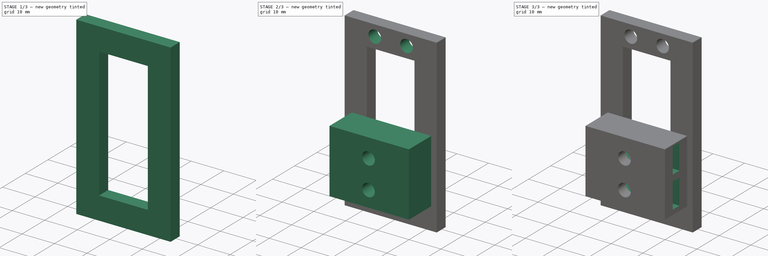
[diagram: build sequence overview — one tinted view per stage of 3, left to right]
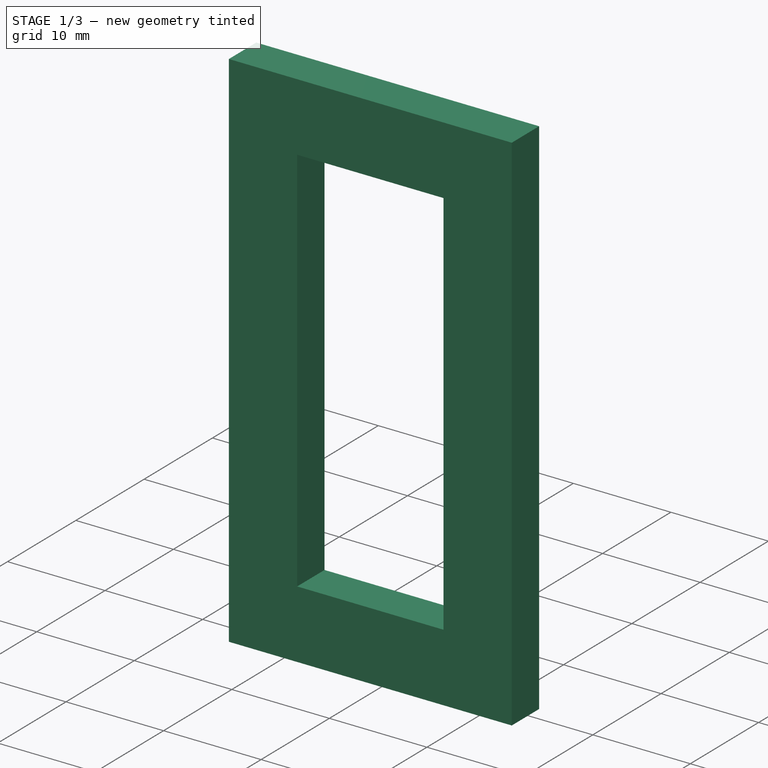
[diagram: stage 1 of 3 — iso view after this stage's code; geometry added in this stage tinted green]
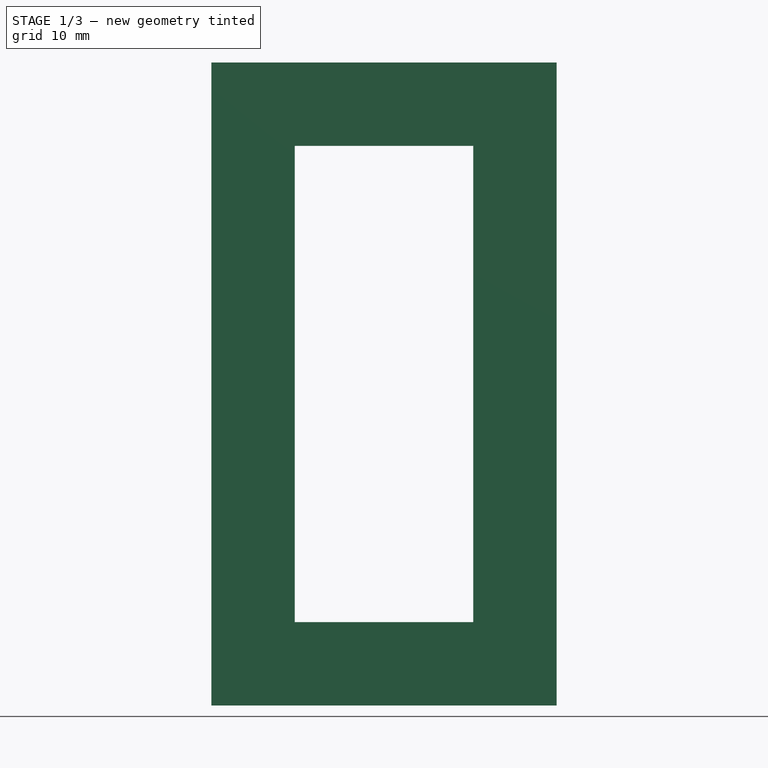
[diagram: stage 1 of 3 — front view after this stage's code; geometry added in this stage tinted green]
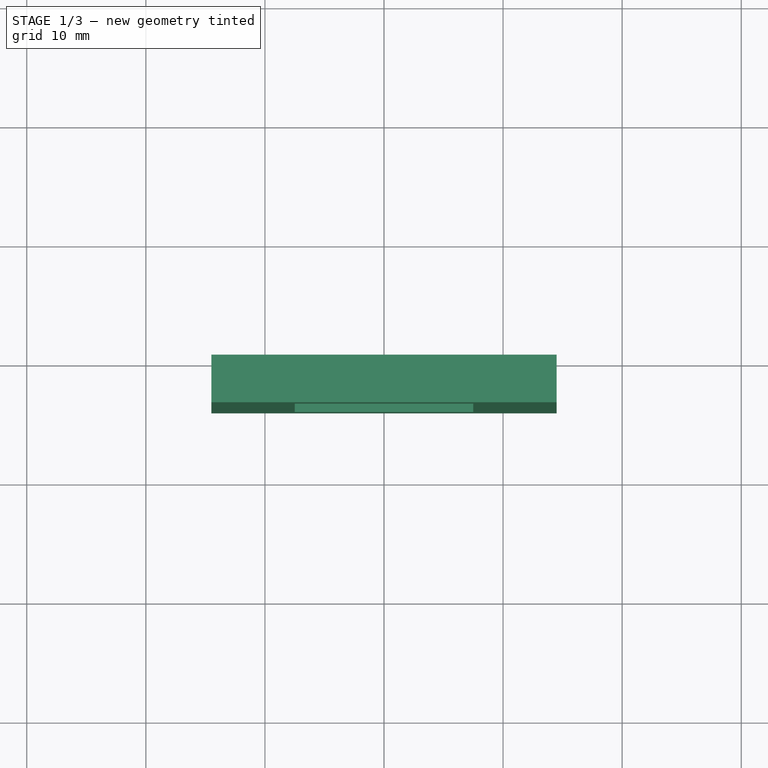
[diagram: stage 1 of 3 — top view after this stage's code; geometry added in this stage tinted green]
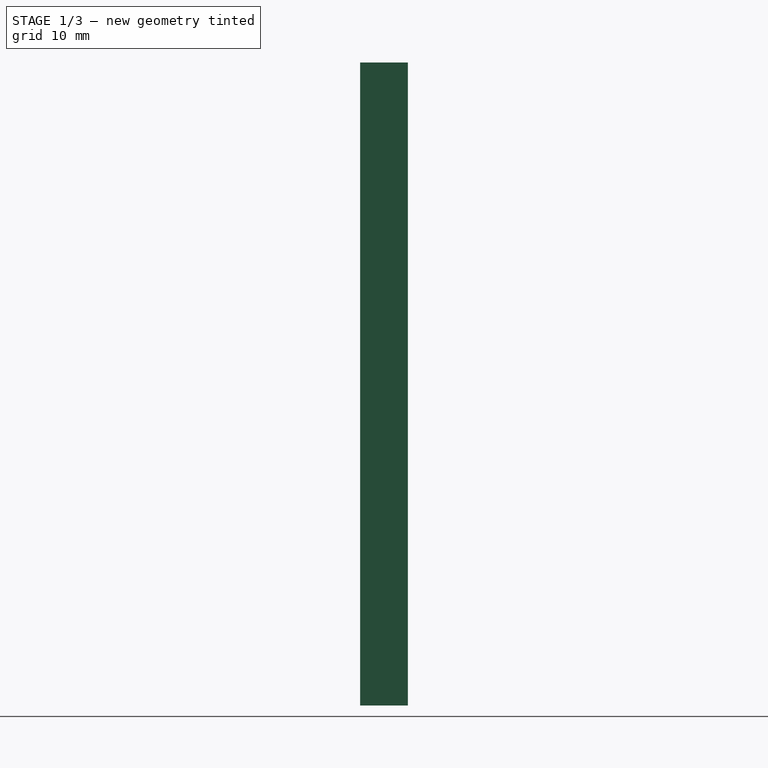
[diagram: stage 1 of 3 — right view after this stage's code; geometry added in this stage tinted green]
FCSTD DOCUMENT  (FreeCAD 0.19R24267 +99 (Git))
Label: Motorhalterung
License: All rights reserved
LicenseURL: http://en.wikipedia.org/wiki/All_rights_reserved
objects: Sketcher::SketchObject×6, PartDesign::Pocket×4, PartDesign::Pad×2, PartDesign::Chamfer×1, PartDesign::Body×1
note: 21 computed .brp shape members not serialized (recipe doc carries the construction recipe); baked Part::Feature solids carry a one-line shape summary decoded from their .brp

FEATURE [Sketcher::SketchObject] Sketch
  FullyConstrained = true
  MapMode = 5
  Placement = pos=(0,0,0) rot=(1,0,0;1.5708rad)
  Support = -> [XZ_Plane]
  sketch-geometry (4):
    g0: LineSegment StartX=-14.5 StartY=27 StartZ=0 EndX=14.5 EndY=27 EndZ=0
    g1: LineSegment StartX=14.5 StartY=27 StartZ=0 EndX=14.5 EndY=-27 EndZ=0
    g2: LineSegment StartX=14.5 StartY=-27 StartZ=0 EndX=-14.5 EndY=-27 EndZ=0
    g3: LineSegment StartX=-14.5 StartY=-27 StartZ=0 EndX=-14.5 EndY=27 EndZ=0
  constraints (11):
    c: Coincident(g0,g1)
    c: Coincident(g1,g2)
    c: Coincident(g2,g3)
    c: Coincident(g3,g0)
    c: Horizontal(g0)
    c: Horizontal(g2)
    c: Vertical(g1)
    c: Vertical(g3)
    c: Symmetric(g2,g0,g-1)
    c: DistanceY(g1,g1) = 54
    c: DistanceX(g2,g2) = 29
FEATURE [PartDesign::Pad] Pad
  Direction = (1,1,1)
  Length = 4
  Length2 = 100
  Placement = pos=(0,0,0) rot=(1,0,0;1.5708rad)
  Profile = -> Sketch
  Type = 0
FEATURE [Sketcher::SketchObject] Sketch001
  FullyConstrained = true
  MapMode = 5
  Placement = pos=(0,-4,1.8e-15) rot=(1,0,0;1.5708rad)
  Support = -> [Pad]
  sketch-geometry (4):
    g0: LineSegment StartX=-7.5 StartY=20 StartZ=0 EndX=7.5 EndY=20 EndZ=0
    g1: LineSegment StartX=7.5 StartY=20 StartZ=0 EndX=7.5 EndY=-20 EndZ=0
    g2: LineSegment StartX=7.5 StartY=-20 StartZ=0 EndX=-7.5 EndY=-20 EndZ=0
    g3: LineSegment StartX=-7.5 StartY=-20 StartZ=0 EndX=-7.5 EndY=20 EndZ=0
  constraints (11):
    c: Coincident(g0,g1)
    c: Coincident(g1,g2)
    c: Coincident(g2,g3)
    c: Coincident(g3,g0)
    c: Horizontal(g0)
    c: Horizontal(g2)
    c: Vertical(g1)
    c: Vertical(g3)
    c: Symmetric(g0,g1,g-1)
    c: DistanceY(g1,g1) = 40
    c: DistanceX(g0,g0) = 15
FEATURE [PartDesign::Pocket] Pocket
  BaseFeature = -> Pad
  Length = 5
  Length2 = 100
  Placement = pos=(0,0,0) rot=(1,0,0;1.5708rad)
  Profile = -> Sketch001
  Type = 0
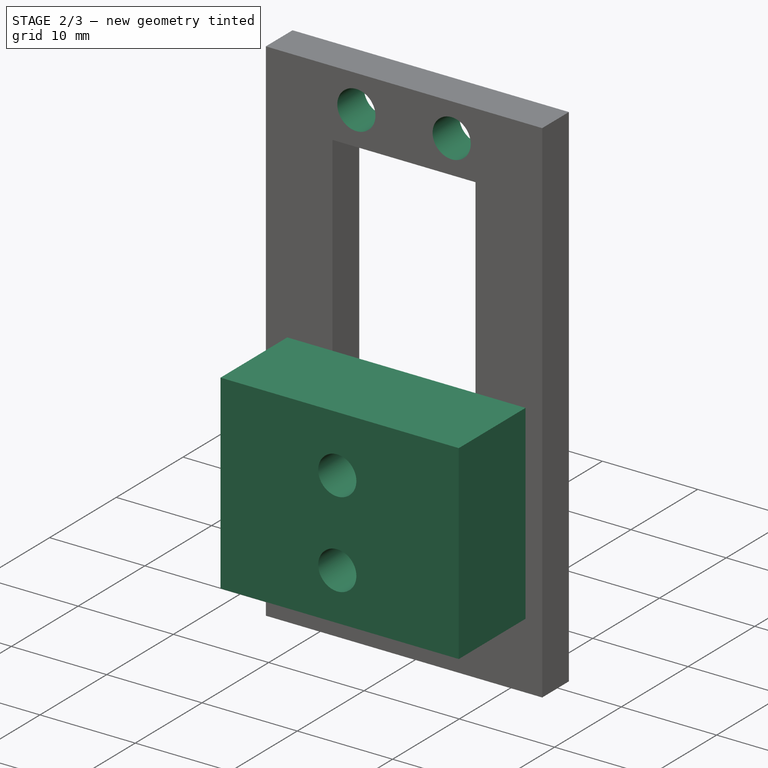
[diagram: stage 2 of 3 — iso view after this stage's code; geometry added in this stage tinted green]
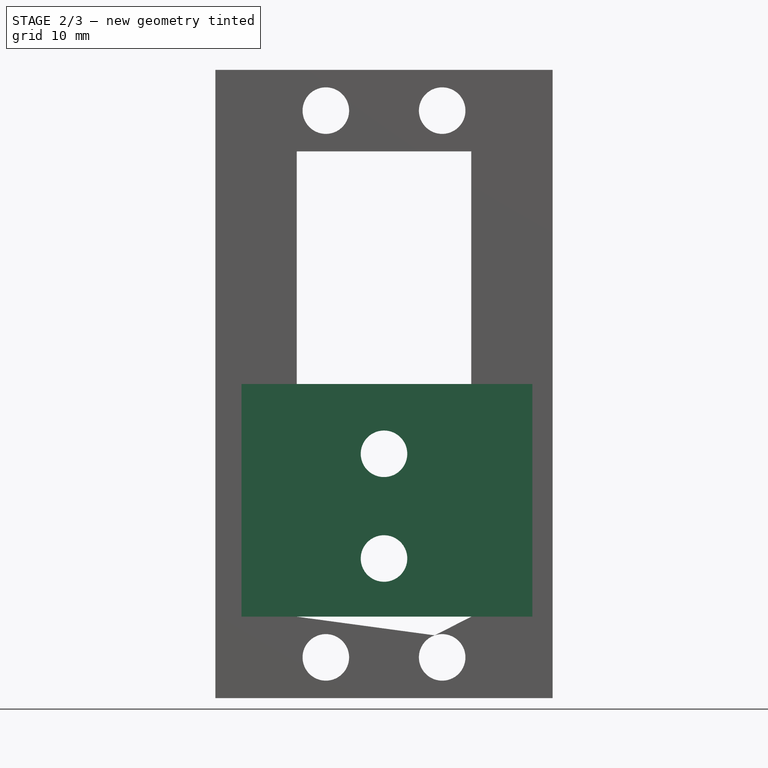
[diagram: stage 2 of 3 — front view after this stage's code; geometry added in this stage tinted green]
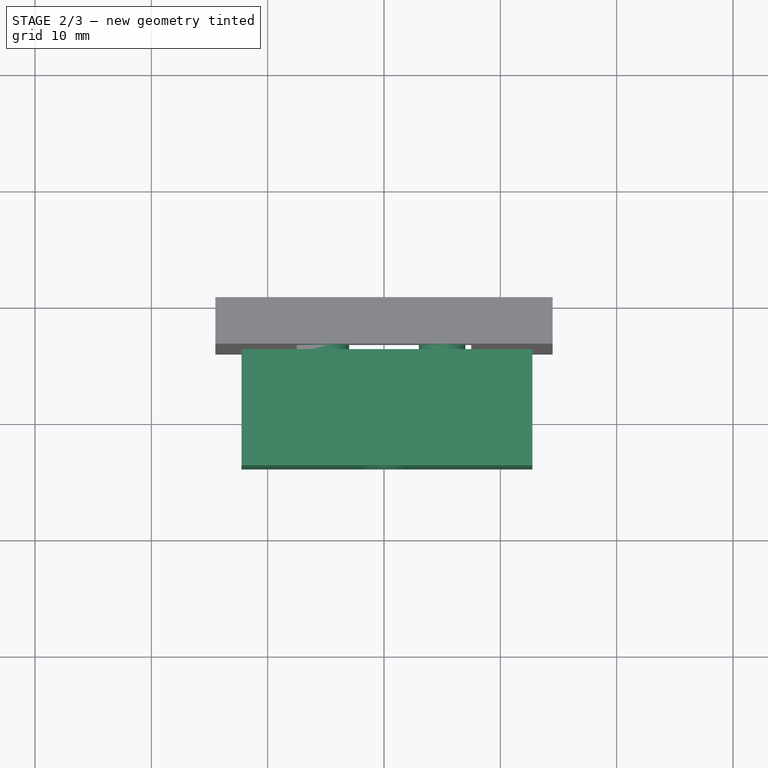
[diagram: stage 2 of 3 — top view after this stage's code; geometry added in this stage tinted green]
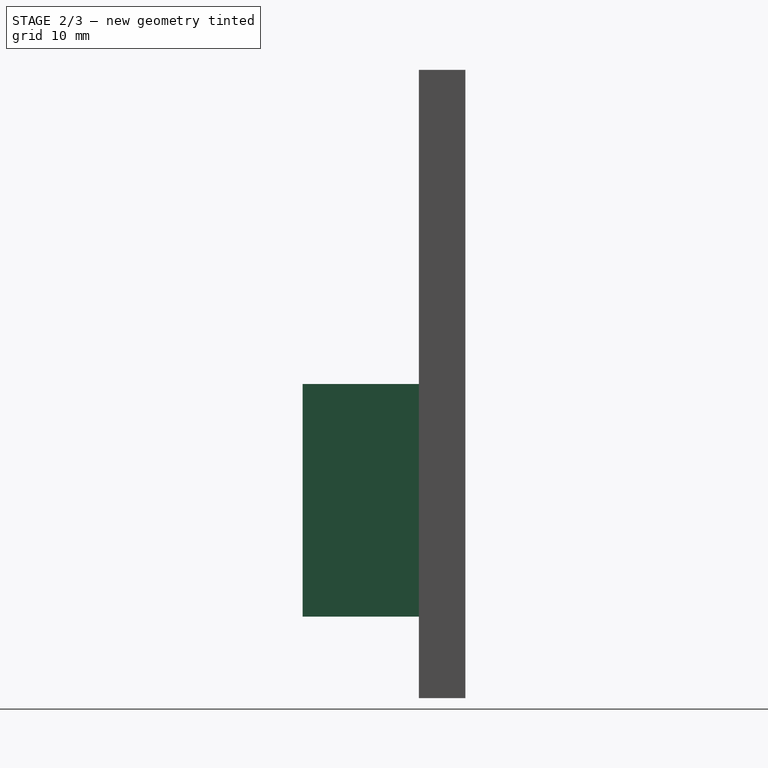
[diagram: stage 2 of 3 — right view after this stage's code; geometry added in this stage tinted green]
FEATURE [Sketcher::SketchObject] Sketch002
  FullyConstrained = true
  MapMode = 5
  Placement = pos=(0,-4,1.8e-15) rot=(1,0,0;1.5708rad)
  Support = -> [Pocket]
  sketch-geometry (8):
    g0: LineSegment StartX=-11 StartY=23.5 StartZ=0 EndX=11 EndY=23.5 EndZ=0
    g1: LineSegment StartX=11 StartY=23.5 StartZ=0 EndX=11 EndY=-23.5 EndZ=0
    g2: LineSegment StartX=11 StartY=-23.5 StartZ=0 EndX=-11 EndY=-23.5 EndZ=0
    g3: LineSegment StartX=-11 StartY=-23.5 StartZ=0 EndX=-11 EndY=23.5 EndZ=0
    g4: Circle CenterX=-5 CenterY=23.5 CenterZ=0 NormalX=0 NormalY=0 NormalZ=1 AngleXU=0 Radius=2
    g5: Circle CenterX=5 CenterY=23.5 CenterZ=0 NormalX=0 NormalY=0 NormalZ=1 AngleXU=0 Radius=2
    g6: Circle CenterX=-5 CenterY=-23.5 CenterZ=0 NormalX=0 NormalY=0 NormalZ=1 AngleXU=0 Radius=2
    g7: Circle CenterX=5 CenterY=-23.5 CenterZ=0 NormalX=0 NormalY=0 NormalZ=1 AngleXU=0 Radius=2
  constraints (22):
    c: Coincident(g0,g1)
    c: Coincident(g1,g2)
    c: Coincident(g2,g3)
    c: Coincident(g3,g0)
    c: Horizontal(g0)
    c: Horizontal(g2)
    c: Vertical(g1)
    c: Vertical(g3)
    c: DistanceY(g1,g1) = 47
    c: DistanceX(g0,g0) = 22
    c: Symmetric(g0,g2,g-1)
    c: PointOnObject(g4,g0)
    c: PointOnObject(g5,g0)
    c: PointOnObject(g6,g2)
    c: DistanceX(g6,g7) = 10
    c: DistanceX(g4,g5) = 10
    c: Radius(g5) = 2
    c: Equal(g5,g4)
    c: Equal(g4,g6)
    c: Equal(g5,g7)
    c: Symmetric(g4,g7,g-1)
    c: DistanceX(g4,g-1) = 5
FEATURE [PartDesign::Pocket] Pocket001
  BaseFeature = -> Pocket
  Length = 5
  Length2 = 100
  Placement = pos=(0,0,0) rot=(1,0,0;1.5708rad)
  Profile = -> Sketch002
  Type = 1
FEATURE [Sketcher::SketchObject] Sketch003
  ExternalGeometry = -> [Pocket001]
  FullyConstrained = true
  MapMode = 5
  Placement = pos=(0,-4,1.8e-15) rot=(1,0,0;1.5708rad)
  Support = -> [Pocket001]
  sketch-geometry (4):
    g0: LineSegment StartX=-12.25 StartY=-20 StartZ=0 EndX=12.75 EndY=-20 EndZ=0
    g1: LineSegment StartX=12.75 StartY=-20 StartZ=0 EndX=12.75 EndY=7.1e-15 EndZ=0
    g2: LineSegment StartX=12.75 StartY=7.1e-15 StartZ=0 EndX=-12.25 EndY=7.1e-15 EndZ=0
    g3: LineSegment StartX=-12.25 StartY=7.1e-15 StartZ=0 EndX=-12.25 EndY=-20 EndZ=0
  constraints (12):
    c: Coincident(g0,g1)
    c: Coincident(g1,g2)
    c: Coincident(g2,g3)
    c: Coincident(g3,g0)
    c: Horizontal(g0)
    c: Horizontal(g2)
    c: Vertical(g1)
    c: Vertical(g3)
    c: PointOnObject(g0,g-3)
    c: DistanceX(g2,g2) = 25
    c: DistanceX(g2,g-1) = 12.25
    c: DistanceY(g1,g1) = 20
FEATURE [PartDesign::Pad] Pad001
  BaseFeature = -> Pocket001
  Direction = (1,1,1)
  Length = 10
  Length2 = 100
  Placement = pos=(0,0,0) rot=(1,0,0;1.5708rad)
  Profile = -> Sketch003
  Type = 0
FEATURE [Sketcher::SketchObject] Sketch004
  FullyConstrained = true
  MapMode = 5
  Placement = pos=(0,-14,2.76e-14) rot=(1,0,0;1.5708rad)
  Support = -> [Pad001]
  sketch-geometry (2):
    g0: Circle CenterX=0 CenterY=-6 CenterZ=0 NormalX=0 NormalY=0 NormalZ=1 AngleXU=0 Radius=2
    g1: Circle CenterX=0 CenterY=-15 CenterZ=0 NormalX=0 NormalY=0 NormalZ=1 AngleXU=0 Radius=2
  constraints (6):
    c: PointOnObject(g0,g-2)
    c: PointOnObject(g1,g-2)
    c: Radius(g0) = 2
    c: Equal(g0,g1)
    c: DistanceY(g1,g0) = 9
    c: DistanceY(g0,g-1) = 6
FEATURE [PartDesign::Pocket] Pocket002
  BaseFeature = -> Pad001
  Length = 5
  Length2 = 100
  Placement = pos=(0,0,0) rot=(1,0,0;1.5708rad)
  Profile = -> Sketch004
  Type = 1
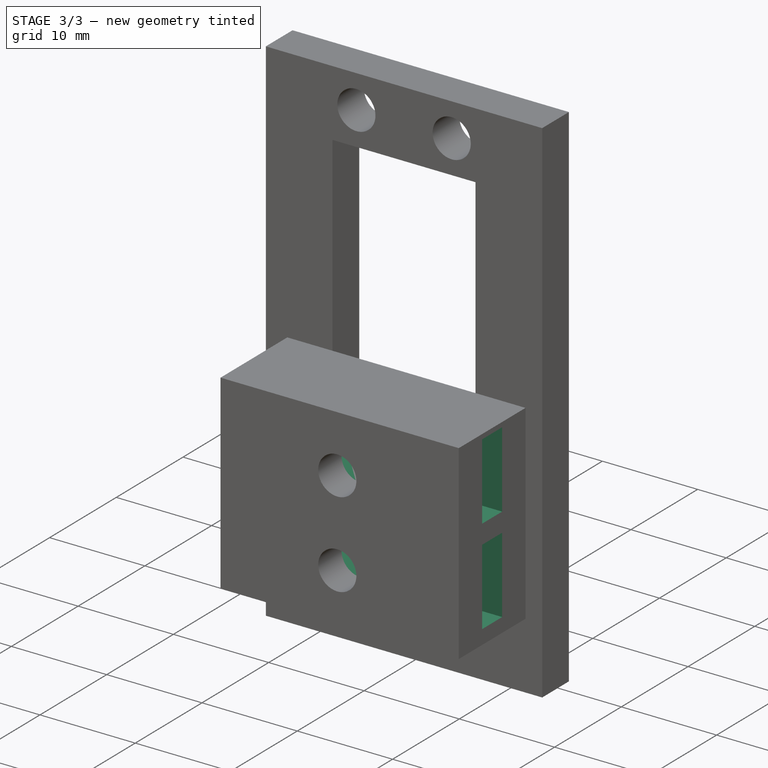
[diagram: stage 3 of 3 — iso view after this stage's code; geometry added in this stage tinted green]
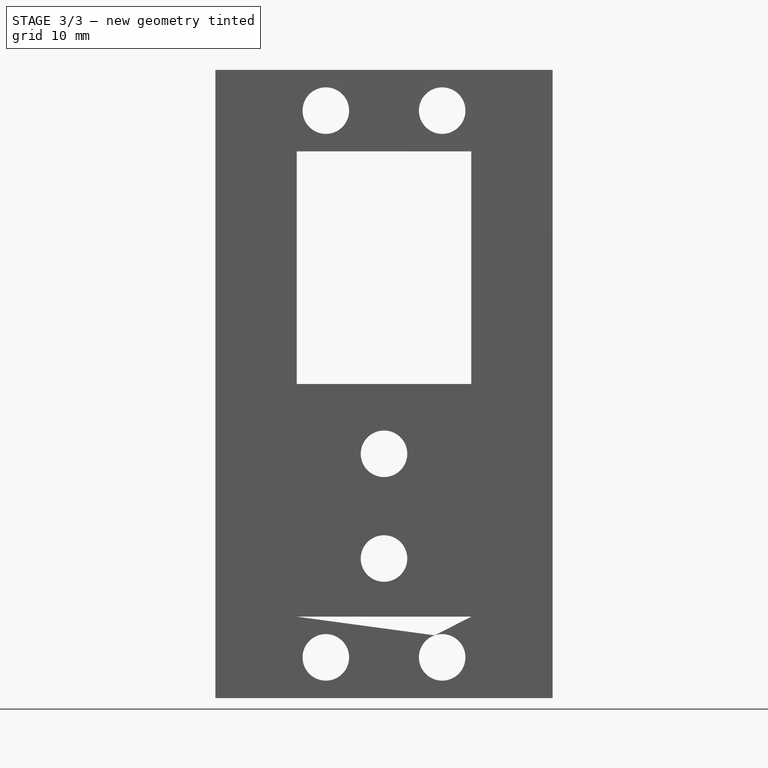
[diagram: stage 3 of 3 — front view after this stage's code; geometry added in this stage tinted green]
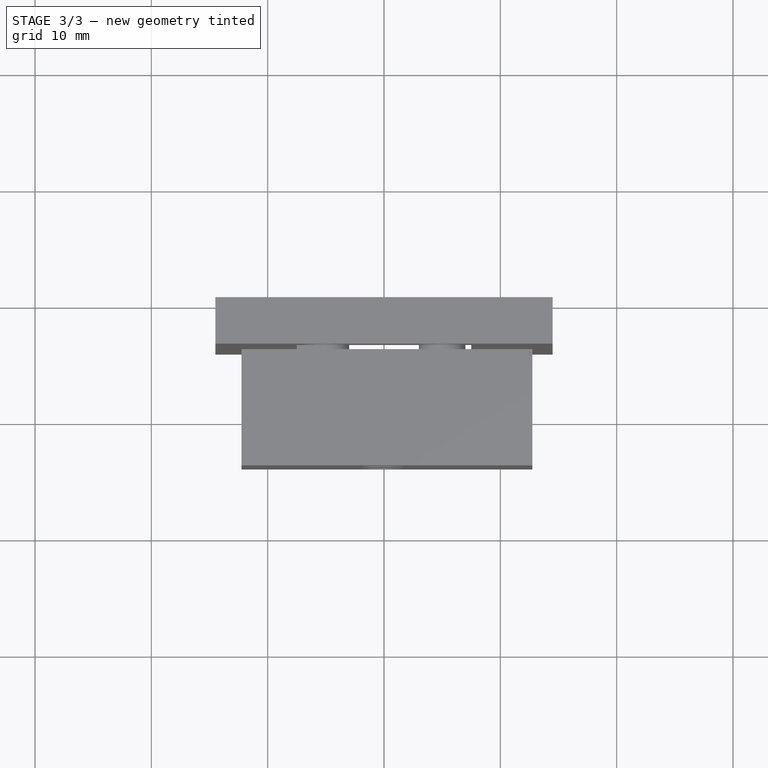
[diagram: stage 3 of 3 — top view after this stage's code; geometry added in this stage tinted green]
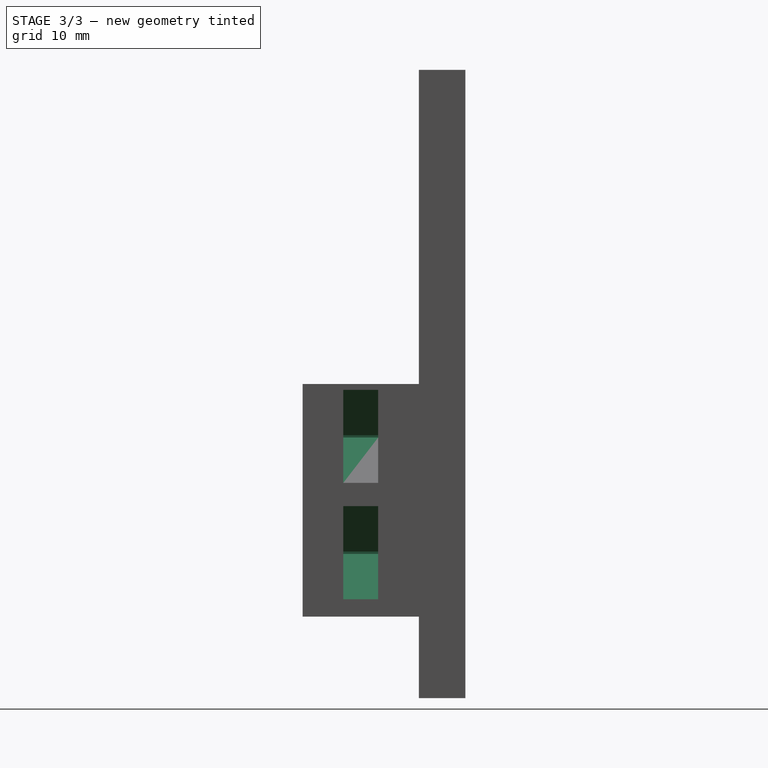
[diagram: stage 3 of 3 — right view after this stage's code; geometry added in this stage tinted green]
FEATURE [Sketcher::SketchObject] Sketch006
  ExternalGeometry = -> [Pocket002]
  FullyConstrained = true
  MapMode = 5
  Placement = pos=(12.75,0,0) rot=(0.707107,0,0.707107;3.14159rad)
  Support = -> [Pocket002]
  sketch-geometry (8):
    g0: LineSegment StartX=-18.5 StartY=10.5 StartZ=0 EndX=-10.5 EndY=10.5 EndZ=0
    g1: LineSegment StartX=-10.5 StartY=10.5 StartZ=0 EndX=-10.5 EndY=7.5 EndZ=0
    g2: LineSegment StartX=-10.5 StartY=7.5 StartZ=0 EndX=-18.5 EndY=7.5 EndZ=0
    g3: LineSegment StartX=-18.5 StartY=7.5 StartZ=0 EndX=-18.5 EndY=10.5 EndZ=0
    g4: LineSegment StartX=-8.5 StartY=10.5 StartZ=0 EndX=-0.5 EndY=10.5 EndZ=0
    g5: LineSegment StartX=-0.5 StartY=10.5 StartZ=0 EndX=-0.5 EndY=7.5 EndZ=0
    g6: LineSegment StartX=-0.5 StartY=7.5 StartZ=0 EndX=-8.5 EndY=7.5 EndZ=0
    g7: LineSegment StartX=-8.5 StartY=7.5 StartZ=0 EndX=-8.5 EndY=10.5 EndZ=0
  constraints (24):
    c: Coincident(g0,g1)
    c: Coincident(g1,g2)
    c: Coincident(g2,g3)
    c: Coincident(g3,g0)
    c: Horizontal(g0)
    c: Horizontal(g2)
    c: Vertical(g1)
    c: Vertical(g3)
    c: Coincident(g4,g5)
    c: Coincident(g5,g6)
    c: Coincident(g6,g7)
    c: Coincident(g7,g4)
    c: Horizontal(g4)
    c: Horizontal(g6)
    c: Vertical(g5)
    c: Vertical(g7)
    c: DistanceY(g1,g1) = 3
    c: DistanceX(g2,g2) = 8
    c: Equal(g2,g6)
    c: Equal(g1,g7)
    c: DistanceY(g-3,g2) = 3.5
    c: DistanceY(g-3,g6) = 3.5
    c: DistanceX(g0,g4) = 2
    c: DistanceX(g5,g-4) = 0.5
FEATURE [PartDesign::Pocket] Pocket003
  BaseFeature = -> Pocket002
  Length = 17
  Length2 = 100
  Placement = pos=(0,0,0) rot=(1,0,0;1.5708rad)
  Profile = -> Sketch006
  Type = 0
FEATURE [PartDesign::Chamfer] Chamfer
  Angle = 45
  Base = -> Pocket003 [Edge75,Edge81,Edge85,Edge71]
  BaseFeature = -> Pocket003
  ChamferType = 0
  FlipDirection = false
  Placement = pos=(0,0,0) rot=(1,0,0;1.5708rad)
  Size = 3.9
  Size2 = 1
  SupportTransform = false
FEATURE [PartDesign::Body] Body
  Group = -> [Sketch,Pad,Sketch001,Pocket,Sketch002,Pocket001,Sketch003,Pad001,Sketch004,Pocket002,Sketch006,Pocket003,Chamfer]
  Origin = -> Origin
  Tip = -> Chamfer
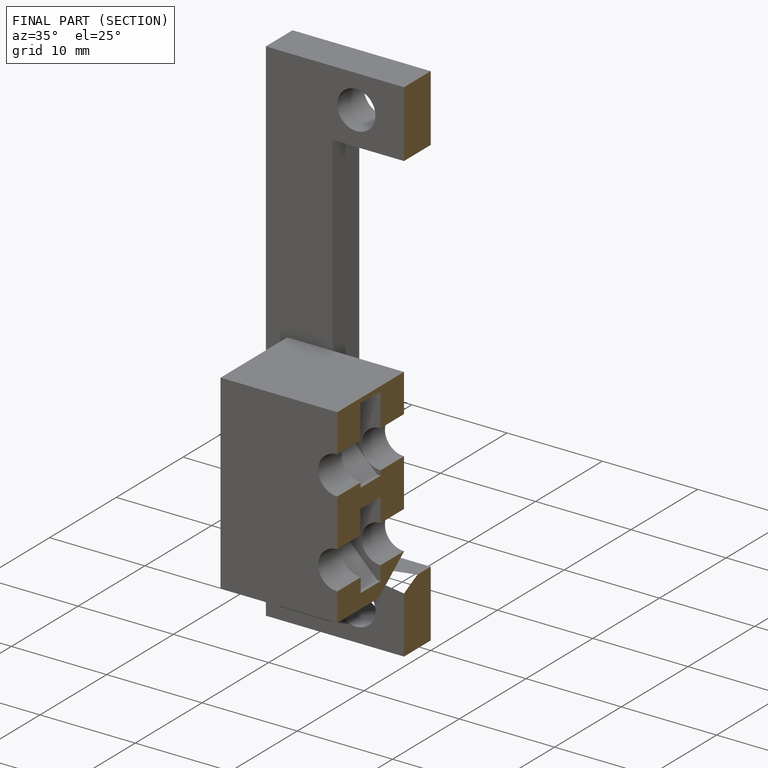
[diagram: finished part — half-section view (interior)]
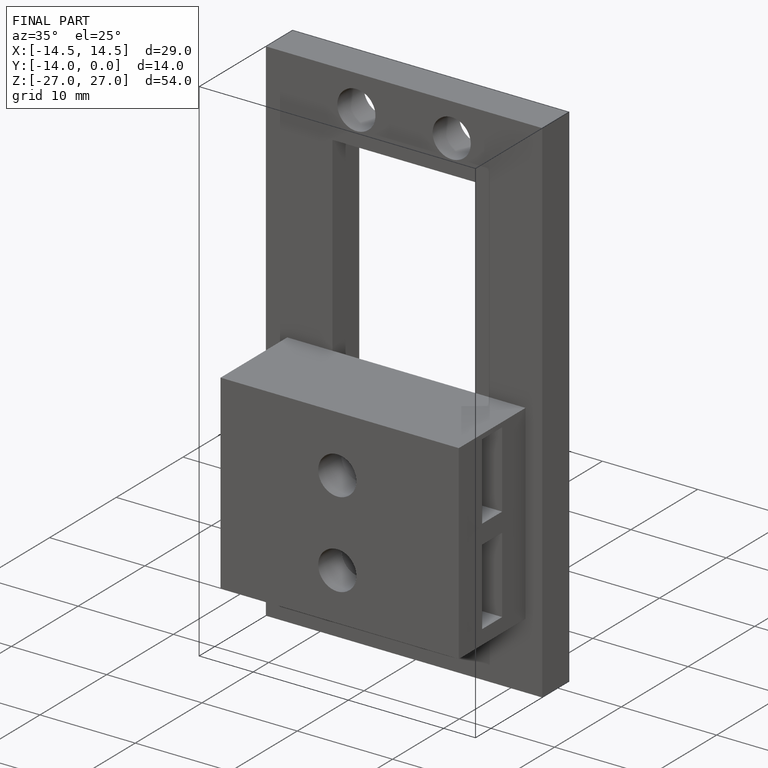
[diagram: finished part — iso view with bounding-box wireframe]
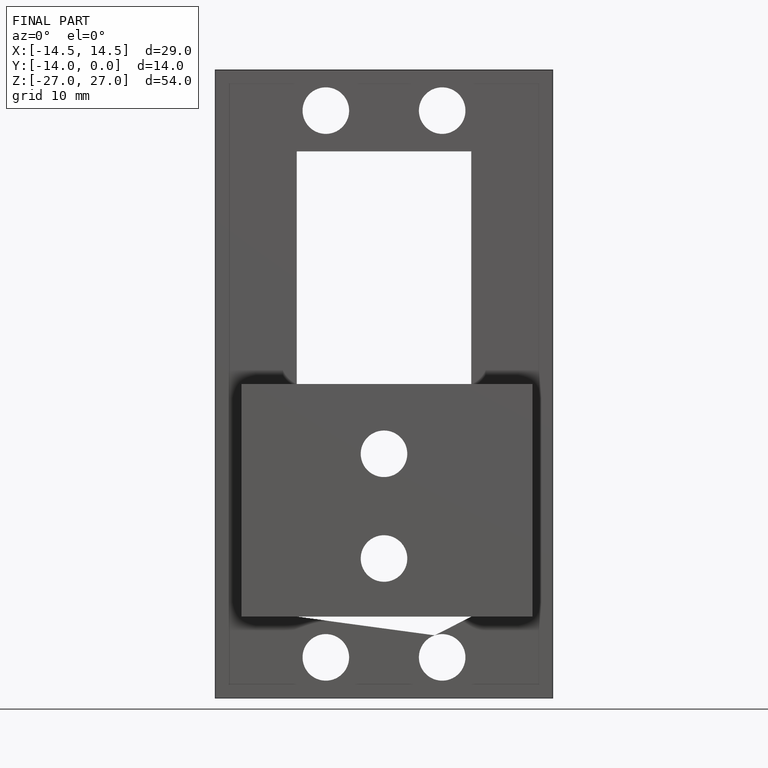
[diagram: finished part — front view with bounding-box wireframe]
